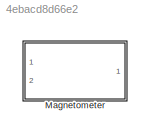
MODEL slx_4ebacd8d66e2
KIND library
CONFIG AbsTol = auto
CONFIG FixedStep = auto
CONFIG MaxStep = auto
CONFIG MinStep = auto
CONFIG RelTol = 1e-3
CONFIG SampleTimeConstraint = Unconstrained
CONFIG Solver = VariableStepAuto
CONFIG SolverMode = Auto
CONFIG SolverName = VariableStepAuto
CONFIG StartTime = 0.0
CONFIG StopTime = 10.0
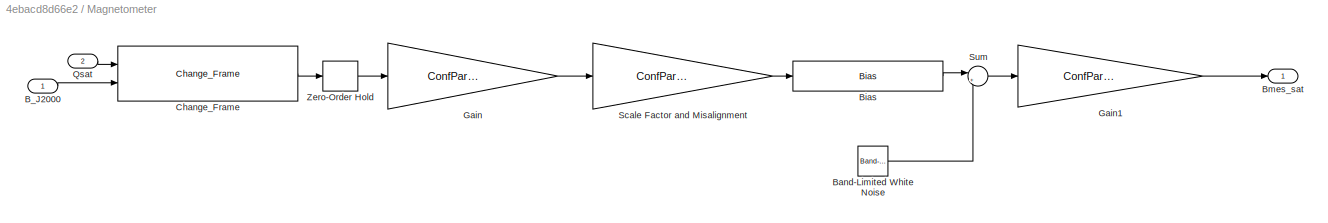
BLOCK [SubSystem] Magnetometer
  Ports = [2, 1]
  RequestExecContextInheritance = off
BLOCK [Inport] Magnetometer/B_J2000
  IconDisplay = Port number
BLOCK [Reference] Magnetometer/Band-Limited White Noise  REF=simulink/Sources/Band-Limited
White Noise
  Cov = ConfParam.confMTM.NoisePower
  Ports = [0, 1]
  SourceBlock = simulink/Sources/Band-Limited\nWhite Noise
  SourceType = Band-Limited White Noise.
  Ts = 1/ConfParam.confMTM.frequency
  VectorParams1D = on
  seed = [23341]
BLOCK [Bias] Magnetometer/Bias
  Bias = ConfParam.confMTM.Bias
  SaturateOnIntegerOverflow = off
BLOCK [Outport] Magnetometer/Bmes_sat
  IconDisplay = Port number
BLOCK [Reference] Magnetometer/Change_Frame  REF=ChangeFrame/Change_Frame
  Ports = [2, 1]
  SourceBlock = ChangeFrame/Change_Frame
  SourceType = SubSystem
BLOCK [Gain] Magnetometer/Gain
  Gain = ConfParam.confMTM.Mp
  Multiplication = Matrix(K*u)
  OutDataTypeStr = Inherit: Inherit via internal rule
  ParamDataTypeStr = Inherit: Inherit via internal rule
  SaturateOnIntegerOverflow = off
BLOCK [Gain] Magnetometer/Gain1
  Gain = ConfParam.confMTM.invMp
  Multiplication = Matrix(K*u)
  OutDataTypeStr = Inherit: Inherit via internal rule
  ParamDataTypeStr = Inherit: Inherit via internal rule
  SaturateOnIntegerOverflow = off
BLOCK [Inport] Magnetometer/Qsat
  IconDisplay = Port number
  Port = 2
BLOCK [Gain] Magnetometer/Scale Factor and Misalignment
  Gain = ConfParam.confMTM.Msf
  Multiplication = Matrix(K*u)
  OutDataTypeStr = Inherit: Inherit via internal rule
  ParamDataTypeStr = Inherit: Inherit via internal rule
  SaturateOnIntegerOverflow = off
BLOCK [Sum] Magnetometer/Sum
  IconShape = round
  InputSameDT = off
  Inputs = |++
  OutDataTypeStr = Inherit: Inherit via internal rule
  Ports = [2, 1]
  SaturateOnIntegerOverflow = off
BLOCK [ZeroOrderHold] Magnetometer/Zero-Order Hold
  SampleTime = 1/ConfParam.confMTM.frequency
LINE Magnetometer/B_J2000:1 -> Magnetometer/Change_Frame:2
LINE Magnetometer/Band-Limited White Noise:1 -> Magnetometer/Sum:2
LINE Magnetometer/Bias:1 -> Magnetometer/Sum:1
LINE Magnetometer/Change_Frame:1 -> Magnetometer/Zero-Order Hold:1
LINE Magnetometer/Gain1:1 -> Magnetometer/Bmes_sat:1
LINE Magnetometer/Gain:1 -> Magnetometer/Scale Factor and Misalignment:1
LINE Magnetometer/Qsat:1 -> Magnetometer/Change_Frame:1
LINE Magnetometer/Scale Factor and Misalignment:1 -> Magnetometer/Bias:1
LINE Magnetometer/Sum:1 -> Magnetometer/Gain1:1
LINE Magnetometer/Zero-Order Hold:1 -> Magnetometer/Gain:1
